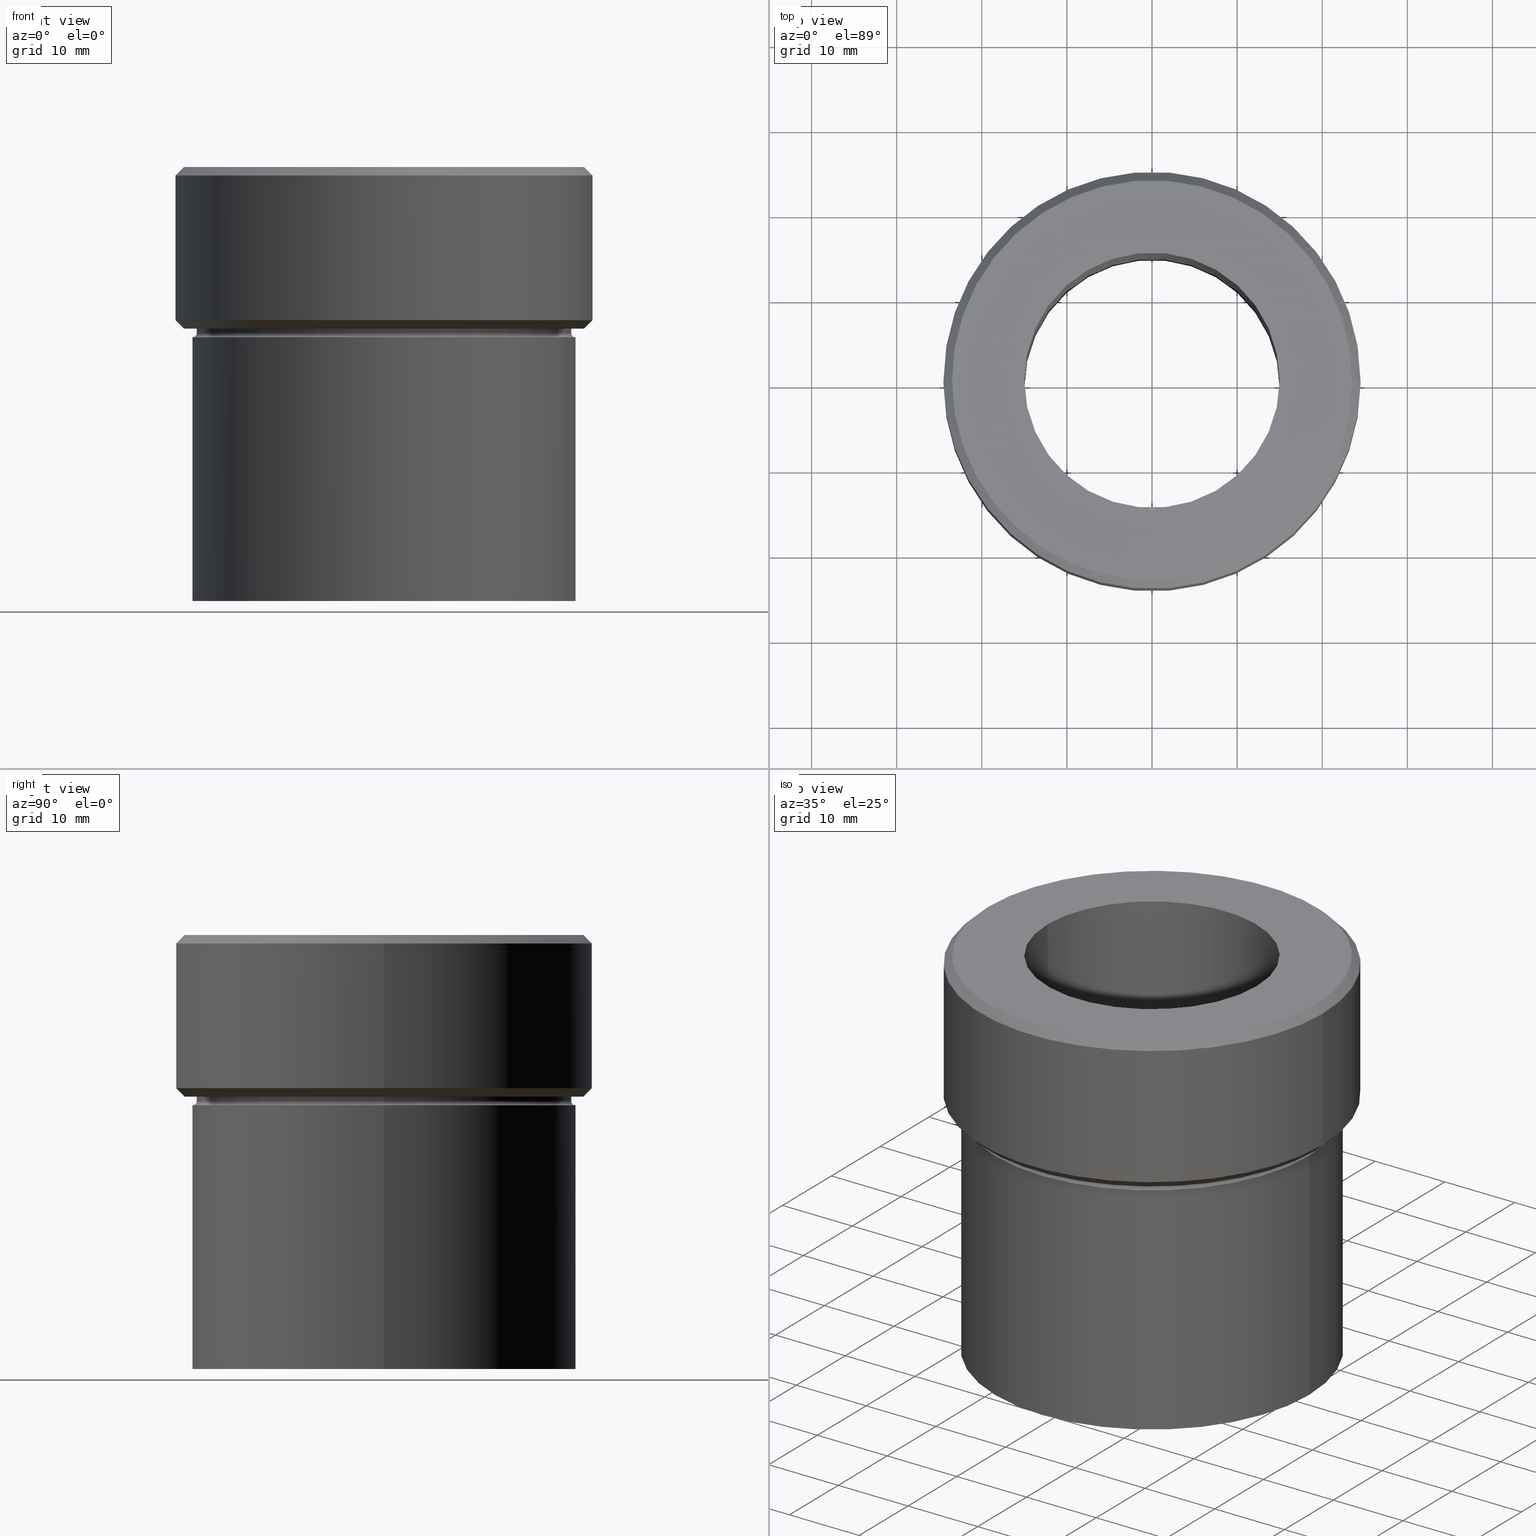
[diagram: canonical four-view strip — front | top / right | iso, engineering-drawing reading convention]
A machine part, canonical four-view strip (front | top / right | iso — engineering-drawing reading convention). The complete STEP part file that produces these views, byte-faithful:
ISO-10303-21;
HEADER;
FILE_DESCRIPTION (( 'STEP AP203' ),
    '1' );
FILE_NAME ('0ce8.STEP',
    '2024-01-08T12:24:59',
    ( '' ),
    ( '' ),
    'SwSTEP 2.0',
    'SolidWorks 2019',
    '' );
FILE_SCHEMA (( 'CONFIG_CONTROL_DESIGN' ));
ENDSEC;

DATA;
#1 = DIRECTION ( 'NONE',  ( 0.000000000000000000, -1.000000000000000000, 0.000000000000000000 ) ) ;
#2 = PERSON_AND_ORGANIZATION ( #485, #363 ) ;
#3 = DIRECTION ( 'NONE',  ( -1.000000000000000000, 0.000000000000000000, 0.000000000000000000 ) ) ;
#4 = DIRECTION ( 'NONE',  ( -0.000000000000000000, -0.000000000000000000, 1.000000000000000000 ) ) ;
#5 = AXIS2_PLACEMENT_3D ( 'NONE', #336, #82, #50 ) ;
#6 = DIRECTION ( 'NONE',  ( -0.000000000000000000, -0.000000000000000000, 1.000000000000000000 ) ) ;
#7 = DATE_TIME_ROLE ( 'classification_date' ) ;
#8 = ORIENTED_EDGE ( 'NONE', *, *, #223, .T. ) ;
#9 = DIRECTION ( 'NONE',  ( -0.000000000000000000, -0.000000000000000000, 1.000000000000000000 ) ) ;
#10 = PLANE ( 'NONE',  #423 ) ;
#11 = DIRECTION ( 'NONE',  ( -0.000000000000000000, -0.000000000000000000, 1.000000000000000000 ) ) ;
#12 = CIRCLE ( 'NONE', #86, 22.00000000000000000 ) ;
#13 = CARTESIAN_POINT ( 'NONE',  ( -22.50000000000000355, 2.755455298081545567E-15, -51.00000000000000000 ) ) ;
#14 = FACE_OUTER_BOUND ( 'NONE', #509, .T. ) ;
#15 = ORIENTED_EDGE ( 'NONE', *, *, #309, .T. ) ;
#16 = EDGE_CURVE ( 'NONE', #229, #299, #208, .T. ) ;
#17 = DIRECTION ( 'NONE',  ( 0.000000000000000000, 0.000000000000000000, -1.000000000000000000 ) ) ;
#18 = DIRECTION ( 'NONE',  ( -1.000000000000000000, 0.000000000000000000, 0.000000000000000000 ) ) ;
#19 = ORIENTED_EDGE ( 'NONE', *, *, #84, .F. ) ;
#20 = CARTESIAN_POINT ( 'NONE',  ( -15.00000000000000000, 1.836970198721029589E-15, -65.00000000000000000 ) ) ;
#21 = CARTESIAN_POINT ( 'NONE',  ( -22.50000000000000000, 2.755455298081544778E-15, -19.99999999999999645 ) ) ;
#22 = ORIENTED_EDGE ( 'NONE', *, *, #315, .T. ) ;
#23 = CONICAL_SURFACE ( 'NONE', #321, 23.50000000000000711, 0.7853981633974482790 ) ;
#24 = VECTOR ( 'NONE', #344, 1000.000000000000000 ) ;
#25 = DIRECTION ( 'NONE',  ( -0.000000000000000000, -0.000000000000000000, 1.000000000000000000 ) ) ;
#26 = ORIENTED_EDGE ( 'NONE', *, *, #170, .F. ) ;
#27 = APPROVAL_DATE_TIME ( #74, #38 ) ;
#28 = VERTEX_POINT ( 'NONE', #374 ) ;
#29 = DIRECTION ( 'NONE',  ( 1.000000000000000000, 0.000000000000000000, 0.000000000000000000 ) ) ;
#30 = APPROVAL_STATUS ( 'not_yet_approved' ) ;
#31 = ORIENTED_EDGE ( 'NONE', *, *, #290, .T. ) ;
#32 = AXIS2_PLACEMENT_3D ( 'NONE', #93, #25, #98 ) ;
#33 = DIRECTION ( 'NONE',  ( -0.000000000000000000, -0.000000000000000000, 1.000000000000000000 ) ) ;
#34 = DIRECTION ( 'NONE',  ( 0.000000000000000000, 0.000000000000000000, 1.000000000000000000 ) ) ;
#35 = ORIENTED_EDGE ( 'NONE', *, *, #151, .F. ) ;
#36 = FACE_OUTER_BOUND ( 'NONE', #498, .T. ) ;
#37 = PERSON_AND_ORGANIZATION_ROLE ( 'design_owner' ) ;
#38 = APPROVAL ( #30, 'NEUR�EN�' ) ;
#39 = FACE_OUTER_BOUND ( 'NONE', #525, .T. ) ;
#40 = AXIS2_PLACEMENT_3D ( 'NONE', #166, #241, #327 ) ;
#41 = AXIS2_PLACEMENT_3D ( 'NONE', #495, #332, #419 ) ;
#42 = MANIFOLD_SOLID_BREP ( 'Odebrat vysunut�m1', #372 ) ;
#43 = LINE ( 'NONE', #117, #388 ) ;
#44 = PRODUCT ( '0ce8', '0ce8', '', ( #111 ) ) ;
#45 = EDGE_LOOP ( 'NONE', ( #345, #173 ) ) ;
#46 = DIRECTION ( 'NONE',  ( -0.000000000000000000, -0.000000000000000000, 1.000000000000000000 ) ) ;
#47 = AXIS2_PLACEMENT_3D ( 'NONE', #164, #200, #236 ) ;
#48 = TOROIDAL_SURFACE ( 'NONE', #41, 22.50000000000000000, 0.5000000000000000000 ) ;
#49 = ORIENTED_EDGE ( 'NONE', *, *, #233, .F. ) ;
#50 = DIRECTION ( 'NONE',  ( 1.000000000000000000, 0.000000000000000000, 0.000000000000000000 ) ) ;
#51 = DIRECTION ( 'NONE',  ( 1.000000000000000000, 0.000000000000000000, 0.000000000000000000 ) ) ;
#52 = EDGE_CURVE ( 'NONE', #270, #66, #244, .T. ) ;
#53 = VERTEX_POINT ( 'NONE', #21 ) ;
#54 = CARTESIAN_POINT ( 'NONE',  ( 0.000000000000000000, 0.000000000000000000, 0.000000000000000000 ) ) ;
#55 = CARTESIAN_POINT ( 'NONE',  ( 0.000000000000000000, 0.000000000000000000, -51.00000000000000000 ) ) ;
#56 = CARTESIAN_POINT ( 'NONE',  ( 22.00000000000000000, 0.000000000000000000, -19.49999999999999645 ) ) ;
#57 = EDGE_LOOP ( 'NONE', ( #96, #392 ) ) ;
#58 = FACE_BOUND ( 'NONE', #350, .T. ) ;
#59 = ORIENTED_EDGE ( 'NONE', *, *, #223, .F. ) ;
#60 = CARTESIAN_POINT ( 'NONE',  ( -22.00000000000000000, 2.694222958124176809E-15, -18.99999999999999645 ) ) ;
#61 = ORIENTED_EDGE ( 'NONE', *, *, #129, .T. ) ;
#62 = DIRECTION ( 'NONE',  ( 1.000000000000000000, 0.000000000000000000, 0.000000000000000000 ) ) ;
#63 = EDGE_LOOP ( 'NONE', ( #384, #105, #107, #396 ) ) ;
#64 = AXIS2_PLACEMENT_3D ( 'NONE', #522, #34, #318 ) ;
#65 = LINE ( 'NONE', #178, #228 ) ;
#66 = VERTEX_POINT ( 'NONE', #502 ) ;
#67 = VERTEX_POINT ( 'NONE', #142 ) ;
#68 = VERTEX_POINT ( 'NONE', #56 ) ;
#69 = EDGE_CURVE ( 'NONE', #28, #153, #195, .T. ) ;
#70 = CYLINDRICAL_SURFACE ( 'NONE', #323, 22.50000000000000000 ) ;
#71 = CARTESIAN_POINT ( 'NONE',  ( 24.50000000000000000, 0.000000000000000000, -0.9999999999999940048 ) ) ;
#72 = EDGE_CURVE ( 'NONE', #273, #68, #466, .T. ) ;
#73 = DIRECTION ( 'NONE',  ( 1.000000000000000000, 0.000000000000000000, 0.000000000000000000 ) ) ;
#74 = DATE_AND_TIME ( #280, #474 ) ;
#75 = CARTESIAN_POINT ( 'NONE',  ( -24.50000000000000000, 3.000384657911015469E-15, -0.9999999999999940048 ) ) ;
#76 = CIRCLE ( 'NONE', #177, 15.00000000000000000 ) ;
#77 = LOCAL_TIME ( 13, 24, 59.00000000000000000, #155 ) ;
#78 = ADVANCED_FACE ( 'NONE', ( #381 ), #255, .T. ) ;
#79 = CARTESIAN_POINT ( 'NONE',  ( 0.000000000000000000, 0.000000000000000000, 0.000000000000000000 ) ) ;
#80 = PERSON_AND_ORGANIZATION_ROLE ( 'creator' ) ;
#81 = ORIENTED_EDGE ( 'NONE', *, *, #414, .F. ) ;
#82 = DIRECTION ( 'NONE',  ( -0.000000000000000000, -0.000000000000000000, 1.000000000000000000 ) ) ;
#83 = DIRECTION ( 'NONE',  ( -0.000000000000000000, -0.000000000000000000, 1.000000000000000000 ) ) ;
#84 = EDGE_CURVE ( 'NONE', #207, #67, #415, .T. ) ;
#85 = PERSON_AND_ORGANIZATION ( #485, #363 ) ;
#86 = AXIS2_PLACEMENT_3D ( 'NONE', #517, #149, #465 ) ;
#87 = CC_DESIGN_APPROVAL ( #154, ( #521 ) ) ;
#88 = CARTESIAN_POINT ( 'NONE',  ( 0.000000000000000000, 0.000000000000000000, 0.000000000000000000 ) ) ;
#89 = LINE ( 'NONE', #492, #124 ) ;
#90 = EDGE_CURVE ( 'NONE', #377, #110, #476, .T. ) ;
#91 = APPLICATION_CONTEXT ( 'configuration controlled 3d designs of mechanical parts and assemblies' ) ;
#92 = CARTESIAN_POINT ( 'NONE',  ( 15.00000000000000000, 0.000000000000000000, 0.000000000000000000 ) ) ;
#93 = CARTESIAN_POINT ( 'NONE',  ( 0.000000000000000000, 0.000000000000000000, -17.99999999999998224 ) ) ;
#94 = DIRECTION ( 'NONE',  ( -0.000000000000000000, -0.000000000000000000, 1.000000000000000000 ) ) ;
#95 = ADVANCED_FACE ( 'NONE', ( #36 ), #439, .F. ) ;
#96 = ORIENTED_EDGE ( 'NONE', *, *, #52, .T. ) ;
#97 = CARTESIAN_POINT ( 'NONE',  ( 24.50000000000000000, 0.000000000000000000, 0.000000000000000000 ) ) ;
#98 = DIRECTION ( 'NONE',  ( 1.000000000000000000, 0.000000000000000000, 0.000000000000000000 ) ) ;
#99 = ADVANCED_FACE ( 'NONE', ( #237 ), #119, .T. ) ;
#100 = VERTEX_POINT ( 'NONE', #196 ) ;
#101 = AXIS2_PLACEMENT_3D ( 'NONE', #302, #94, #513 ) ;
#102 = DIRECTION ( 'NONE',  ( 1.224646799147353207E-16, 1.000000000000000000, 0.000000000000000000 ) ) ;
#103 = ORIENTED_EDGE ( 'NONE', *, *, #431, .F. ) ;
#104 = CARTESIAN_POINT ( 'NONE',  ( 0.000000000000000000, 24.50000000000000000, -18.99999999999999645 ) ) ;
#105 = ORIENTED_EDGE ( 'NONE', *, *, #494, .T. ) ;
#106 = CYLINDRICAL_SURFACE ( 'NONE', #445, 15.00000000000000000 ) ;
#107 = ORIENTED_EDGE ( 'NONE', *, *, #531, .T. ) ;
#108 = PRODUCT_RELATED_PRODUCT_CATEGORY ( 'detail', '', ( #44 ) ) ;
#109 =( NAMED_UNIT ( * ) PLANE_ANGLE_UNIT ( ) SI_UNIT ( $, .RADIAN. ) );
#110 = VERTEX_POINT ( 'NONE', #484 ) ;
#111 = MECHANICAL_CONTEXT ( 'NONE', #219, 'mechanical' ) ;
#112 = ORIENTED_EDGE ( 'NONE', *, *, #203, .T. ) ;
#113 = EDGE_CURVE ( 'NONE', #66, #270, #373, .T. ) ;
#114 = CARTESIAN_POINT ( 'NONE',  ( 0.000000000000000000, 0.000000000000000000, -18.99999999999999645 ) ) ;
#115 = ORIENTED_EDGE ( 'NONE', *, *, #194, .T. ) ;
#116 = AXIS2_PLACEMENT_3D ( 'NONE', #446, #359, #283 ) ;
#117 = CARTESIAN_POINT ( 'NONE',  ( -23.50000000000000711, 0.000000000000000000, 0.000000000000000000 ) ) ;
#118 = CIRCLE ( 'NONE', #148, 22.00000000000000000 ) ;
#119 = CYLINDRICAL_SURFACE ( 'NONE', #516, 22.00000000000000000 ) ;
#120 = PERSON_AND_ORGANIZATION ( #485, #363 ) ;
#121 = DIRECTION ( 'NONE',  ( -0.000000000000000000, -0.000000000000000000, 1.000000000000000000 ) ) ;
#122 = CARTESIAN_POINT ( 'NONE',  ( 22.50000000000000000, 0.000000000000000000, 0.000000000000000000 ) ) ;
#123 = PERSON_AND_ORGANIZATION ( #485, #363 ) ;
#124 = VECTOR ( 'NONE', #6, 1000.000000000000000 ) ;
#125 = LOCAL_TIME ( 13, 24, 59.00000000000000000, #295 ) ;
#126 = DIRECTION ( 'NONE',  ( -0.000000000000000000, -0.000000000000000000, 1.000000000000000000 ) ) ;
#127 = AXIS2_PLACEMENT_3D ( 'NONE', #527, #279, #285 ) ;
#128 = FACE_OUTER_BOUND ( 'NONE', #438, .T. ) ;
#129 = EDGE_CURVE ( 'NONE', #132, #162, #160, .T. ) ;
#130 = DIRECTION ( 'NONE',  ( -0.000000000000000000, -0.000000000000000000, 1.000000000000000000 ) ) ;
#131 = PERSON_AND_ORGANIZATION ( #485, #363 ) ;
#132 = VERTEX_POINT ( 'NONE', #71 ) ;
#133 = CC_DESIGN_DATE_AND_TIME_ASSIGNMENT ( #371, #7, ( #169 ) ) ;
#134 = LINE ( 'NONE', #297, #235 ) ;
#135 = CALENDAR_DATE ( 2024, 8, 1 ) ;
#136 = CIRCLE ( 'NONE', #40, 23.49999999999999289 ) ;
#137 = CIRCLE ( 'NONE', #192, 22.50000000000000000 ) ;
#138 = ORIENTED_EDGE ( 'NONE', *, *, #271, .F. ) ;
#139 = CARTESIAN_POINT ( 'NONE',  ( 0.000000000000000000, 22.50000000000000355, -51.00000000000000000 ) ) ;
#140 = EDGE_CURVE ( 'NONE', #273, #443, #397, .T. ) ;
#141 = FACE_OUTER_BOUND ( 'NONE', #313, .T. ) ;
#142 = CARTESIAN_POINT ( 'NONE',  ( -23.49999999999999289, 2.939152317953647500E-15, -18.99999999999999645 ) ) ;
#143 = CARTESIAN_POINT ( 'NONE',  ( 22.00000000000000000, 0.000000000000000000, -18.99999999999999645 ) ) ;
#144 = ORIENTED_EDGE ( 'NONE', *, *, #309, .F. ) ;
#145 = CARTESIAN_POINT ( 'NONE',  ( 0.000000000000000000, 0.000000000000000000, 0.000000000000000000 ) ) ;
#146 = DIRECTION ( 'NONE',  ( -0.000000000000000000, -0.000000000000000000, 1.000000000000000000 ) ) ;
#147 = ORIENTED_EDGE ( 'NONE', *, *, #140, .T. ) ;
#148 = AXIS2_PLACEMENT_3D ( 'NONE', #412, #83, #452 ) ;
#149 = DIRECTION ( 'NONE',  ( -0.000000000000000000, -0.000000000000000000, 1.000000000000000000 ) ) ;
#150 = ORIENTED_EDGE ( 'NONE', *, *, #194, .F. ) ;
#151 = EDGE_CURVE ( 'NONE', #507, #443, #510, .T. ) ;
#152 = CARTESIAN_POINT ( 'NONE',  ( 0.000000000000000000, 0.000000000000000000, -65.00000000000000000 ) ) ;
#153 = VERTEX_POINT ( 'NONE', #486 ) ;
#154 = APPROVAL ( #243, 'NEUR�EN�' ) ;
#155 = COORDINATED_UNIVERSAL_TIME_OFFSET ( 1, 0, .AHEAD. ) ;
#156 = VECTOR ( 'NONE', #304, 1000.000000000000000 ) ;
#157 = ORIENTED_EDGE ( 'NONE', *, *, #494, .F. ) ;
#158 = EDGE_CURVE ( 'NONE', #299, #100, #481, .T. ) ;
#159 = ORIENTED_EDGE ( 'NONE', *, *, #282, .F. ) ;
#160 = CIRCLE ( 'NONE', #116, 24.50000000000000000 ) ;
#161 = FACE_OUTER_BOUND ( 'NONE', #256, .T. ) ;
#162 = VERTEX_POINT ( 'NONE', #75 ) ;
#163 = AXIS2_PLACEMENT_3D ( 'NONE', #152, #269, #390 ) ;
#164 = CARTESIAN_POINT ( 'NONE',  ( 0.000000000000000000, 0.000000000000000000, 0.000000000000000000 ) ) ;
#165 = AXIS2_PLACEMENT_3D ( 'NONE', #506, #146, #265 ) ;
#166 = CARTESIAN_POINT ( 'NONE',  ( 0.000000000000000000, 0.000000000000000000, -18.99999999999999645 ) ) ;
#167 = LINE ( 'NONE', #122, #530 ) ;
#168 = FACE_OUTER_BOUND ( 'NONE', #225, .T. ) ;
#169 = SECURITY_CLASSIFICATION ( '', '', #453 ) ;
#170 = EDGE_CURVE ( 'NONE', #377, #53, #238, .T. ) ;
#171 = CARTESIAN_POINT ( 'NONE',  ( -22.00000000000000000, 2.694222958124176809E-15, -19.49999999999999645 ) ) ;
#172 = CC_DESIGN_PERSON_AND_ORGANIZATION_ASSIGNMENT ( #402, #493, ( #521 ) ) ;
#173 = ORIENTED_EDGE ( 'NONE', *, *, #514, .F. ) ;
#174 = CARTESIAN_POINT ( 'NONE',  ( 0.000000000000000000, 0.000000000000000000, -51.00000000000000000 ) ) ;
#175 = ORIENTED_EDGE ( 'NONE', *, *, #514, .T. ) ;
#176 = DIRECTION ( 'NONE',  ( 0.000000000000000000, 0.000000000000000000, -1.000000000000000000 ) ) ;
#177 = AXIS2_PLACEMENT_3D ( 'NONE', #55, #220, #432 ) ;
#178 = CARTESIAN_POINT ( 'NONE',  ( -24.50000000000000000, 3.000384657911015469E-15, -17.99999999999998224 ) ) ;
#179 = DIRECTION ( 'NONE',  ( 1.000000000000000000, 0.000000000000000000, 0.000000000000000000 ) ) ;
#180 = DIRECTION ( 'NONE',  ( 1.000000000000000000, 0.000000000000000000, 0.000000000000000000 ) ) ;
#181 = ORIENTED_EDGE ( 'NONE', *, *, #140, .F. ) ;
#182 = DIRECTION ( 'NONE',  ( 1.000000000000000000, 0.000000000000000000, 0.000000000000000000 ) ) ;
#183 = ORIENTED_EDGE ( 'NONE', *, *, #203, .F. ) ;
#184 = DIRECTION ( 'NONE',  ( -1.000000000000000000, 0.000000000000000000, -0.000000000000000000 ) ) ;
#185 = ORIENTED_EDGE ( 'NONE', *, *, #226, .T. ) ;
#186 = AXIS2_PLACEMENT_3D ( 'NONE', #274, #216, #385 ) ;
#187 = FACE_OUTER_BOUND ( 'NONE', #57, .T. ) ;
#188 = ORIENTED_EDGE ( 'NONE', *, *, #72, .T. ) ;
#189 = ORIENTED_EDGE ( 'NONE', *, *, #72, .F. ) ;
#190 = ADVANCED_FACE ( 'NONE', ( #39 ), #23, .T. ) ;
#191 = COORDINATED_UNIVERSAL_TIME_OFFSET ( 1, 0, .AHEAD. ) ;
#192 = AXIS2_PLACEMENT_3D ( 'NONE', #202, #526, #317 ) ;
#193 = CC_DESIGN_SECURITY_CLASSIFICATION ( #169, ( #521 ) ) ;
#194 = EDGE_CURVE ( 'NONE', #68, #464, #528, .T. ) ;
#195 = CIRCLE ( 'NONE', #101, 24.50000000000000000 ) ;
#196 = CARTESIAN_POINT ( 'NONE',  ( -15.00000000000000000, 1.836970198721029589E-15, 0.000000000000000000 ) ) ;
#197 = DIRECTION ( 'NONE',  ( 1.000000000000000000, 0.000000000000000000, 0.000000000000000000 ) ) ;
#198 = VECTOR ( 'NONE', #300, 1000.000000000000114 ) ;
#199 = CARTESIAN_POINT ( 'NONE',  ( -22.00000000000000000, 2.694222958124176809E-15, 0.000000000000000000 ) ) ;
#200 = DIRECTION ( 'NONE',  ( -0.000000000000000000, -0.000000000000000000, 1.000000000000000000 ) ) ;
#201 = CALENDAR_DATE ( 2024, 8, 1 ) ;
#202 = CARTESIAN_POINT ( 'NONE',  ( 0.000000000000000000, 0.000000000000000000, -19.99999999999999645 ) ) ;
#203 = EDGE_CURVE ( 'NONE', #67, #207, #136, .T. ) ;
#204 = DIRECTION ( 'NONE',  ( 1.000000000000000000, 0.000000000000000000, 0.000000000000000000 ) ) ;
#205 = VECTOR ( 'NONE', #121, 1000.000000000000000 ) ;
#206 = COORDINATED_UNIVERSAL_TIME_OFFSET ( 1, 0, .AHEAD. ) ;
#207 = VERTEX_POINT ( 'NONE', #404 ) ;
#208 = LINE ( 'NONE', #496, #284 ) ;
#209 = FACE_OUTER_BOUND ( 'NONE', #518, .T. ) ;
#210 = APPROVAL_DATE_TIME ( #369, #376 ) ;
#211 = ORIENTED_EDGE ( 'NONE', *, *, #414, .T. ) ;
#212 = FACE_BOUND ( 'NONE', #45, .T. ) ;
#213 = ORIENTED_EDGE ( 'NONE', *, *, #357, .T. ) ;
#214 = DIRECTION ( 'NONE',  ( -1.000000000000000000, 0.000000000000000000, -0.000000000000000000 ) ) ;
#215 = CIRCLE ( 'NONE', #314, 0.5000000000000004441 ) ;
#216 = DIRECTION ( 'NONE',  ( 0.000000000000000000, 0.000000000000000000, -1.000000000000000000 ) ) ;
#217 = DIRECTION ( 'NONE',  ( -0.000000000000000000, -0.000000000000000000, 1.000000000000000000 ) ) ;
#218 = ORIENTED_EDGE ( 'NONE', *, *, #226, .F. ) ;
#219 = APPLICATION_CONTEXT ( 'configuration controlled 3d designs of mechanical parts and assemblies' ) ;
#220 = DIRECTION ( 'NONE',  ( 0.000000000000000000, 0.000000000000000000, -1.000000000000000000 ) ) ;
#221 = CARTESIAN_POINT ( 'NONE',  ( 0.000000000000000000, 0.000000000000000000, -18.99999999999999645 ) ) ;
#222 = ORIENTED_EDGE ( 'NONE', *, *, #357, .F. ) ;
#223 = EDGE_CURVE ( 'NONE', #270, #162, #43, .T. ) ;
#224 = FACE_OUTER_BOUND ( 'NONE', #353, .T. ) ;
#225 = EDGE_LOOP ( 'NONE', ( #433, #311, #31, #61 ) ) ;
#226 = EDGE_CURVE ( 'NONE', #110, #464, #167, .T. ) ;
#227 = CARTESIAN_POINT ( 'NONE',  ( 0.000000000000000000, 0.000000000000000000, 0.000000000000000000 ) ) ;
#228 = VECTOR ( 'NONE', #471, 1000.000000000000114 ) ;
#229 = VERTEX_POINT ( 'NONE', #488 ) ;
#230 = DIRECTION ( 'NONE',  ( -1.000000000000000000, 0.000000000000000000, 0.000000000000000000 ) ) ;
#231 = AXIS2_PLACEMENT_3D ( 'NONE', #395, #523, #480 ) ;
#232 = ORIENTED_EDGE ( 'NONE', *, *, #441, .F. ) ;
#233 = EDGE_CURVE ( 'NONE', #464, #53, #137, .T. ) ;
#234 =( NAMED_UNIT ( * ) SI_UNIT ( $, .STERADIAN. ) SOLID_ANGLE_UNIT ( ) );
#235 = VECTOR ( 'NONE', #262, 1000.000000000000114 ) ;
#236 = DIRECTION ( 'NONE',  ( 1.000000000000000000, 0.000000000000000000, 0.000000000000000000 ) ) ;
#237 = FACE_OUTER_BOUND ( 'NONE', #515, .T. ) ;
#238 = LINE ( 'NONE', #398, #252 ) ;
#239 = CC_DESIGN_DATE_AND_TIME_ASSIGNMENT ( #316, #442, ( #338 ) ) ;
#240 = AXIS2_PLACEMENT_3D ( 'NONE', #422, #462, #330 ) ;
#241 = DIRECTION ( 'NONE',  ( 0.000000000000000000, 0.000000000000000000, -1.000000000000000000 ) ) ;
#242 = LOCAL_TIME ( 13, 24, 59.00000000000000000, #206 ) ;
#243 = APPROVAL_STATUS ( 'not_yet_approved' ) ;
#244 = CIRCLE ( 'NONE', #427, 23.50000000000000711 ) ;
#245 = ADVANCED_FACE ( 'NONE', ( #161 ), #70, .T. ) ;
#246 = DIRECTION ( 'NONE',  ( -0.000000000000000000, -0.000000000000000000, 1.000000000000000000 ) ) ;
#247 = ORIENTED_EDGE ( 'NONE', *, *, #90, .F. ) ;
#248 = EDGE_CURVE ( 'NONE', #53, #464, #307, .T. ) ;
#249 = DATE_AND_TIME ( #135, #242 ) ;
#250 = ORIENTED_EDGE ( 'NONE', *, *, #267, .F. ) ;
#251 = DIRECTION ( 'NONE',  ( -0.000000000000000000, -0.000000000000000000, 1.000000000000000000 ) ) ;
#252 = VECTOR ( 'NONE', #246, 1000.000000000000000 ) ;
#253 = APPROVAL_STATUS ( 'not_yet_approved' ) ;
#254 = AXIS2_PLACEMENT_3D ( 'NONE', #54, #9, #459 ) ;
#255 = CONICAL_SURFACE ( 'NONE', #165, 24.50000000000000000, 0.7853981633974447263 ) ;
#256 = EDGE_LOOP ( 'NONE', ( #213, #382, #49, #218 ) ) ;
#257 = FACE_OUTER_BOUND ( 'NONE', #469, .T. ) ;
#258 = DIRECTION ( 'NONE',  ( 0.000000000000000000, 0.000000000000000000, -1.000000000000000000 ) ) ;
#259 = DIRECTION ( 'NONE',  ( 1.000000000000000000, 0.000000000000000000, 0.000000000000000000 ) ) ;
#260 = CC_DESIGN_PERSON_AND_ORGANIZATION_ASSIGNMENT ( #278, #354, ( #338 ) ) ;
#261 = EDGE_LOOP ( 'NONE', ( #418, #391 ) ) ;
#262 = DIRECTION ( 'NONE',  ( 0.7071067811865474617, 8.659560562354932858E-17, -0.7071067811865474617 ) ) ;
#263 = CONICAL_SURFACE ( 'NONE', #186, 23.50000000000000711, 0.7853981633974482790 ) ;
#264 = CARTESIAN_POINT ( 'NONE',  ( 0.000000000000000000, 0.000000000000000000, -51.00000000000000000 ) ) ;
#265 = DIRECTION ( 'NONE',  ( 1.000000000000000000, 0.000000000000000000, 0.000000000000000000 ) ) ;
#266 = ORIENTED_EDGE ( 'NONE', *, *, #52, .F. ) ;
#267 = EDGE_CURVE ( 'NONE', #153, #28, #499, .T. ) ;
#268 = UNCERTAINTY_MEASURE_WITH_UNIT (LENGTH_MEASURE( 1.000000000000000082E-05 ), #360, 'distance_accuracy_value', 'NONE');
#269 = DIRECTION ( 'NONE',  ( -0.000000000000000000, -0.000000000000000000, 1.000000000000000000 ) ) ;
#270 = VERTEX_POINT ( 'NONE', #456 ) ;
#271 = EDGE_CURVE ( 'NONE', #68, #507, #89, .T. ) ;
#272 = CARTESIAN_POINT ( 'NONE',  ( 0.000000000000000000, 0.000000000000000000, 0.000000000000000000 ) ) ;
#273 = VERTEX_POINT ( 'NONE', #171 ) ;
#274 = CARTESIAN_POINT ( 'NONE',  ( 0.000000000000000000, 0.000000000000000000, 0.000000000000000000 ) ) ;
#275 = VECTOR ( 'NONE', #4, 1000.000000000000000 ) ;
#276 = ORIENTED_EDGE ( 'NONE', *, *, #129, .F. ) ;
#277 = EDGE_LOOP ( 'NONE', ( #222, #247 ) ) ;
#278 = PERSON_AND_ORGANIZATION ( #485, #363 ) ;
#279 = DIRECTION ( 'NONE',  ( -0.000000000000000000, -0.000000000000000000, 1.000000000000000000 ) ) ;
#280 = CALENDAR_DATE ( 2024, 8, 1 ) ;
#281 = CIRCLE ( 'NONE', #298, 15.00000000000000000 ) ;
#282 = EDGE_CURVE ( 'NONE', #207, #153, #497, .T. ) ;
#283 = DIRECTION ( 'NONE',  ( 1.000000000000000000, 0.000000000000000000, 0.000000000000000000 ) ) ;
#284 = VECTOR ( 'NONE', #126, 1000.000000000000000 ) ;
#285 = DIRECTION ( 'NONE',  ( 1.000000000000000000, 0.000000000000000000, 0.000000000000000000 ) ) ;
#286 = ADVANCED_BREP_SHAPE_REPRESENTATION ( '0ce8', ( #42, #64 ), #511 ) ;
#287 = DIRECTION ( 'NONE',  ( 0.000000000000000000, 0.000000000000000000, -1.000000000000000000 ) ) ;
#288 = AXIS2_PLACEMENT_3D ( 'NONE', #174, #417, #51 ) ;
#289 = CARTESIAN_POINT ( 'NONE',  ( 0.000000000000000000, 0.000000000000000000, 0.000000000000000000 ) ) ;
#290 = EDGE_CURVE ( 'NONE', #153, #132, #503, .T. ) ;
#291 = CYLINDRICAL_SURFACE ( 'NONE', #5, 24.50000000000000000 ) ;
#292 = APPROVAL_DATE_TIME ( #249, #154 ) ;
#293 = ORIENTED_EDGE ( 'NONE', *, *, #504, .F. ) ;
#294 = CARTESIAN_POINT ( 'NONE',  ( 0.000000000000000000, 0.000000000000000000, -17.99999999999998224 ) ) ;
#295 = COORDINATED_UNIVERSAL_TIME_OFFSET ( 1, 0, .AHEAD. ) ;
#296 = ORIENTED_EDGE ( 'NONE', *, *, #248, .T. ) ;
#297 = CARTESIAN_POINT ( 'NONE',  ( 23.50000000000000711, 2.877919977996281109E-15, 0.000000000000000000 ) ) ;
#298 = AXIS2_PLACEMENT_3D ( 'NONE', #272, #512, #62 ) ;
#299 = VERTEX_POINT ( 'NONE', #92 ) ;
#300 = DIRECTION ( 'NONE',  ( 0.7071067811865451302, 0.000000000000000000, 0.7071067811865500152 ) ) ;
#301 = CARTESIAN_POINT ( 'NONE',  ( -22.50000000000000000, 2.755455298081544778E-15, -19.49999999999999645 ) ) ;
#302 = CARTESIAN_POINT ( 'NONE',  ( 0.000000000000000000, 0.000000000000000000, -17.99999999999998224 ) ) ;
#303 = VERTEX_POINT ( 'NONE', #339 ) ;
#304 = DIRECTION ( 'NONE',  ( -0.000000000000000000, -0.000000000000000000, 1.000000000000000000 ) ) ;
#305 = ADVANCED_FACE ( 'NONE', ( #257 ), #48, .F. ) ;
#306 = EDGE_LOOP ( 'NONE', ( #405, #112 ) ) ;
#307 = CIRCLE ( 'NONE', #240, 22.50000000000000000 ) ;
#308 = CYLINDRICAL_SURFACE ( 'NONE', #163, 15.00000000000000000 ) ;
#309 = EDGE_CURVE ( 'NONE', #68, #273, #118, .T. ) ;
#310 = CARTESIAN_POINT ( 'NONE',  ( 0.000000000000000000, 0.000000000000000000, -0.9999999999999940048 ) ) ;
#311 = ORIENTED_EDGE ( 'NONE', *, *, #69, .T. ) ;
#312 = DIRECTION ( 'NONE',  ( 1.000000000000000000, 0.000000000000000000, 0.000000000000000000 ) ) ;
#313 = EDGE_LOOP ( 'NONE', ( #519, #266, #8, #276 ) ) ;
#314 = AXIS2_PLACEMENT_3D ( 'NONE', #301, #102, #346 ) ;
#315 = EDGE_CURVE ( 'NONE', #66, #132, #134, .T. ) ;
#316 = DATE_AND_TIME ( #356, #77 ) ;
#317 = DIRECTION ( 'NONE',  ( 1.000000000000000000, 0.000000000000000000, 0.000000000000000000 ) ) ;
#318 = DIRECTION ( 'NONE',  ( 1.000000000000000000, 0.000000000000000000, 0.000000000000000000 ) ) ;
#319 = ORIENTED_EDGE ( 'NONE', *, *, #90, .T. ) ;
#320 = CARTESIAN_POINT ( 'NONE',  ( 0.000000000000000000, 0.000000000000000000, 0.000000000000000000 ) ) ;
#321 = AXIS2_PLACEMENT_3D ( 'NONE', #365, #368, #3 ) ;
#322 = ADVANCED_FACE ( 'NONE', ( #128 ), #406, .T. ) ;
#323 = AXIS2_PLACEMENT_3D ( 'NONE', #320, #130, #204 ) ;
#324 = DIRECTION ( 'NONE',  ( 1.000000000000000000, 0.000000000000000000, 0.000000000000000000 ) ) ;
#325 = AXIS2_PLACEMENT_3D ( 'NONE', #79, #479, #197 ) ;
#326 = SHAPE_DEFINITION_REPRESENTATION ( #335, #286 ) ;
#327 = DIRECTION ( 'NONE',  ( -1.000000000000000000, 0.000000000000000000, 0.000000000000000000 ) ) ;
#328 = ADVANCED_FACE ( 'NONE', ( #168 ), #291, .T. ) ;
#329 = CIRCLE ( 'NONE', #473, 15.00000000000000000 ) ;
#330 = DIRECTION ( 'NONE',  ( 1.000000000000000000, 0.000000000000000000, 0.000000000000000000 ) ) ;
#331 = APPROVAL_ROLE ( '' ) ;
#332 = DIRECTION ( 'NONE',  ( -0.000000000000000000, -0.000000000000000000, 1.000000000000000000 ) ) ;
#333 = APPROVAL_ROLE ( '' ) ;
#334 = ADVANCED_FACE ( 'NONE', ( #209 ), #379, .T. ) ;
#335 = PRODUCT_DEFINITION_SHAPE ( 'NONE', 'NONE',  #338 ) ;
#336 = CARTESIAN_POINT ( 'NONE',  ( 0.000000000000000000, 0.000000000000000000, 0.000000000000000000 ) ) ;
#337 = ORIENTED_EDGE ( 'NONE', *, *, #158, .T. ) ;
#338 = PRODUCT_DEFINITION ( 'NEZN�M�', '', #521, #447 ) ;
#339 = CARTESIAN_POINT ( 'NONE',  ( -15.00000000000000000, 1.836970198721029589E-15, -51.00000000000000000 ) ) ;
#340 = AXIS2_PLACEMENT_3D ( 'NONE', #310, #508, #180 ) ;
#341 = APPROVAL_PERSON_ORGANIZATION ( #2, #376, #333 ) ;
#342 = CYLINDRICAL_SURFACE ( 'NONE', #450, 22.50000000000000000 ) ;
#343 = LINE ( 'NONE', #380, #156 ) ;
#344 = DIRECTION ( 'NONE',  ( -0.000000000000000000, -0.000000000000000000, 1.000000000000000000 ) ) ;
#345 = ORIENTED_EDGE ( 'NONE', *, *, #475, .F. ) ;
#346 = DIRECTION ( 'NONE',  ( -1.000000000000000000, 1.224646799147349509E-16, 0.000000000000000000 ) ) ;
#347 = ORIENTED_EDGE ( 'NONE', *, *, #271, .T. ) ;
#348 = CIRCLE ( 'NONE', #288, 22.50000000000000355 ) ;
#349 = DIRECTION ( 'NONE',  ( -0.000000000000000000, -0.000000000000000000, 1.000000000000000000 ) ) ;
#350 = EDGE_LOOP ( 'NONE', ( #440, #211 ) ) ;
#351 = AXIS2_PLACEMENT_3D ( 'NONE', #477, #217, #259 ) ;
#352 = FACE_OUTER_BOUND ( 'NONE', #63, .T. ) ;
#353 = EDGE_LOOP ( 'NONE', ( #183, #386, #250, #159 ) ) ;
#354 = PERSON_AND_ORGANIZATION_ROLE ( 'creator' ) ;
#355 = ORIENTED_EDGE ( 'NONE', *, *, #248, .F. ) ;
#356 = CALENDAR_DATE ( 2024, 8, 1 ) ;
#357 = EDGE_CURVE ( 'NONE', #110, #377, #348, .T. ) ;
#358 = APPLICATION_PROTOCOL_DEFINITION ( 'international standard', 'config_control_design', 1994, #219 ) ;
#359 = DIRECTION ( 'NONE',  ( 0.000000000000000000, 0.000000000000000000, -1.000000000000000000 ) ) ;
#360 =( LENGTH_UNIT ( ) NAMED_UNIT ( * ) SI_UNIT ( .MILLI., .METRE. ) );
#361 = EDGE_LOOP ( 'NONE', ( #293, #19, #457, #430 ) ) ;
#362 = DIRECTION ( 'NONE',  ( -0.000000000000000000, -0.000000000000000000, 1.000000000000000000 ) ) ;
#363 = ORGANIZATION ( 'NEUR�EN�', 'NEUR�EN�', '' ) ;
#364 = CC_DESIGN_APPROVAL ( #376, ( #169 ) ) ;
#365 = CARTESIAN_POINT ( 'NONE',  ( 0.000000000000000000, 0.000000000000000000, 0.000000000000000000 ) ) ;
#366 = CALENDAR_DATE ( 2024, 8, 1 ) ;
#367 = ADVANCED_FACE ( 'NONE', ( #212, #378 ), #10, .T. ) ;
#368 = DIRECTION ( 'NONE',  ( 0.000000000000000000, 0.000000000000000000, -1.000000000000000000 ) ) ;
#369 = DATE_AND_TIME ( #201, #125 ) ;
#370 = CARTESIAN_POINT ( 'NONE',  ( 24.50000000000000000, 0.000000000000000000, -17.99999999999998224 ) ) ;
#371 = DATE_AND_TIME ( #366, #413 ) ;
#372 = CLOSED_SHELL ( 'NONE', ( #403, #95, #190, #489, #245, #334, #322, #455, #328, #520, #99, #407, #367, #78, #451, #305, #436 ) ) ;
#373 = CIRCLE ( 'NONE', #325, 23.50000000000000711 ) ;
#374 = CARTESIAN_POINT ( 'NONE',  ( -24.50000000000000000, 3.000384657911015469E-15, -17.99999999999998224 ) ) ;
#375 = CARTESIAN_POINT ( 'NONE',  ( 0.000000000000000000, 0.000000000000000000, 0.000000000000000000 ) ) ;
#376 = APPROVAL ( #253, 'NEUR�EN�' ) ;
#377 = VERTEX_POINT ( 'NONE', #13 ) ;
#378 = FACE_OUTER_BOUND ( 'NONE', #277, .T. ) ;
#379 = CYLINDRICAL_SURFACE ( 'NONE', #254, 22.00000000000000000 ) ;
#380 = CARTESIAN_POINT ( 'NONE',  ( -24.50000000000000000, 3.000384657911015469E-15, 0.000000000000000000 ) ) ;
#381 = FACE_OUTER_BOUND ( 'NONE', #361, .T. ) ;
#382 = ORIENTED_EDGE ( 'NONE', *, *, #170, .T. ) ;
#383 = PLANE ( 'NONE',  #389 ) ;
#384 = ORIENTED_EDGE ( 'NONE', *, *, #475, .T. ) ;
#385 = DIRECTION ( 'NONE',  ( -1.000000000000000000, 0.000000000000000000, 0.000000000000000000 ) ) ;
#386 = ORIENTED_EDGE ( 'NONE', *, *, #504, .T. ) ;
#387 = AXIS2_PLACEMENT_3D ( 'NONE', #444, #1, #287 ) ;
#388 = VECTOR ( 'NONE', #401, 1000.000000000000114 ) ;
#389 = AXIS2_PLACEMENT_3D ( 'NONE', #104, #17, #184 ) ;
#390 = DIRECTION ( 'NONE',  ( 1.000000000000000000, 0.000000000000000000, 0.000000000000000000 ) ) ;
#391 = ORIENTED_EDGE ( 'NONE', *, *, #531, .F. ) ;
#392 = ORIENTED_EDGE ( 'NONE', *, *, #113, .T. ) ;
#393 = DIRECTION ( 'NONE',  ( -0.000000000000000000, -0.000000000000000000, 1.000000000000000000 ) ) ;
#394 = EDGE_CURVE ( 'NONE', #28, #162, #343, .T. ) ;
#395 = CARTESIAN_POINT ( 'NONE',  ( 0.000000000000000000, 0.000000000000000000, -19.49999999999999645 ) ) ;
#396 = ORIENTED_EDGE ( 'NONE', *, *, #16, .F. ) ;
#397 = LINE ( 'NONE', #199, #205 ) ;
#398 = CARTESIAN_POINT ( 'NONE',  ( -22.50000000000000000, 2.755455298081544778E-15, 0.000000000000000000 ) ) ;
#399 = COORDINATED_UNIVERSAL_TIME_OFFSET ( 1, 0, .AHEAD. ) ;
#400 = AXIS2_PLACEMENT_3D ( 'NONE', #294, #46, #500 ) ;
#401 = DIRECTION ( 'NONE',  ( -0.7071067811865474617, 0.000000000000000000, -0.7071067811865474617 ) ) ;
#402 = PERSON_AND_ORGANIZATION ( #485, #363 ) ;
#403 = ADVANCED_FACE ( 'NONE', ( #352 ), #308, .F. ) ;
#404 = CARTESIAN_POINT ( 'NONE',  ( 23.49999999999999289, 0.000000000000000000, -18.99999999999999645 ) ) ;
#405 = ORIENTED_EDGE ( 'NONE', *, *, #84, .T. ) ;
#406 = CYLINDRICAL_SURFACE ( 'NONE', #490, 24.50000000000000000 ) ;
#407 = ADVANCED_FACE ( 'NONE', ( #14 ), #342, .T. ) ;
#408 = PERSON_AND_ORGANIZATION_ROLE ( 'classification_officer' ) ;
#409 = ORIENTED_EDGE ( 'NONE', *, *, #267, .T. ) ;
#410 = CIRCLE ( 'NONE', #340, 24.50000000000000000 ) ;
#411 = ORIENTED_EDGE ( 'NONE', *, *, #113, .F. ) ;
#412 = CARTESIAN_POINT ( 'NONE',  ( 0.000000000000000000, 0.000000000000000000, -19.49999999999999645 ) ) ;
#413 = LOCAL_TIME ( 13, 24, 59.00000000000000000, #399 ) ;
#414 = EDGE_CURVE ( 'NONE', #443, #507, #12, .T. ) ;
#415 = CIRCLE ( 'NONE', #460, 23.49999999999999289 ) ;
#416 = ORIENTED_EDGE ( 'NONE', *, *, #290, .F. ) ;
#417 = DIRECTION ( 'NONE',  ( -0.000000000000000000, -0.000000000000000000, 1.000000000000000000 ) ) ;
#418 = ORIENTED_EDGE ( 'NONE', *, *, #158, .F. ) ;
#419 = DIRECTION ( 'NONE',  ( 1.000000000000000000, 0.000000000000000000, 0.000000000000000000 ) ) ;
#420 = CARTESIAN_POINT ( 'NONE',  ( 0.000000000000000000, 0.000000000000000000, -65.00000000000000000 ) ) ;
#421 = ORIENTED_EDGE ( 'NONE', *, *, #394, .T. ) ;
#422 = CARTESIAN_POINT ( 'NONE',  ( 0.000000000000000000, 0.000000000000000000, -19.99999999999999645 ) ) ;
#423 = AXIS2_PLACEMENT_3D ( 'NONE', #139, #176, #214 ) ;
#424 = CC_DESIGN_APPROVAL ( #38, ( #338 ) ) ;
#425 = FACE_OUTER_BOUND ( 'NONE', #306, .T. ) ;
#426 = DIRECTION ( 'NONE',  ( 0.000000000000000000, 0.000000000000000000, -1.000000000000000000 ) ) ;
#427 = AXIS2_PLACEMENT_3D ( 'NONE', #88, #393, #29 ) ;
#428 = ORIENTED_EDGE ( 'NONE', *, *, #441, .T. ) ;
#429 = DIRECTION ( 'NONE',  ( 0.000000000000000000, -0.000000000000000000, 1.000000000000000000 ) ) ;
#430 = ORIENTED_EDGE ( 'NONE', *, *, #69, .F. ) ;
#431 = EDGE_CURVE ( 'NONE', #273, #53, #215, .T. ) ;
#432 = DIRECTION ( 'NONE',  ( -1.000000000000000000, 0.000000000000000000, 0.000000000000000000 ) ) ;
#433 = ORIENTED_EDGE ( 'NONE', *, *, #394, .F. ) ;
#434 = AXIS2_PLACEMENT_3D ( 'NONE', #114, #362, #73 ) ;
#435 = APPROVAL_PERSON_ORGANIZATION ( #448, #38, #524 ) ;
#436 = ADVANCED_FACE ( 'NONE', ( #501 ), #106, .F. ) ;
#437 = LINE ( 'NONE', #20, #24 ) ;
#438 = EDGE_LOOP ( 'NONE', ( #409, #421, #428, #416 ) ) ;
#439 = TOROIDAL_SURFACE ( 'NONE', #231, 22.50000000000000000, 0.5000000000000000000 ) ;
#440 = ORIENTED_EDGE ( 'NONE', *, *, #151, .T. ) ;
#441 = EDGE_CURVE ( 'NONE', #162, #132, #410, .T. ) ;
#442 = DATE_TIME_ROLE ( 'creation_date' ) ;
#443 = VERTEX_POINT ( 'NONE', #60 ) ;
#444 = CARTESIAN_POINT ( 'NONE',  ( 22.50000000000000000, 0.000000000000000000, -19.49999999999999645 ) ) ;
#445 = AXIS2_PLACEMENT_3D ( 'NONE', #420, #11, #505 ) ;
#446 = CARTESIAN_POINT ( 'NONE',  ( 0.000000000000000000, 0.000000000000000000, -0.9999999999999940048 ) ) ;
#447 = DESIGN_CONTEXT ( 'detailed design', #91, 'design' ) ;
#448 = PERSON_AND_ORGANIZATION ( #485, #363 ) ;
#449 = DIRECTION ( 'NONE',  ( -0.000000000000000000, -0.000000000000000000, 1.000000000000000000 ) ) ;
#450 = AXIS2_PLACEMENT_3D ( 'NONE', #227, #349, #312 ) ;
#451 = ADVANCED_FACE ( 'NONE', ( #141 ), #263, .T. ) ;
#452 = DIRECTION ( 'NONE',  ( 1.000000000000000000, 0.000000000000000000, 0.000000000000000000 ) ) ;
#453 = SECURITY_CLASSIFICATION_LEVEL ( 'unclassified' ) ;
#454 = ORIENTED_EDGE ( 'NONE', *, *, #431, .T. ) ;
#455 = ADVANCED_FACE ( 'NONE', ( #461, #187 ), #463, .T. ) ;
#456 = CARTESIAN_POINT ( 'NONE',  ( -23.50000000000000711, 0.000000000000000000, 0.000000000000000000 ) ) ;
#457 = ORIENTED_EDGE ( 'NONE', *, *, #282, .T. ) ;
#458 = AXIS2_PLACEMENT_3D ( 'NONE', #145, #429, #182 ) ;
#459 = DIRECTION ( 'NONE',  ( 1.000000000000000000, 0.000000000000000000, 0.000000000000000000 ) ) ;
#460 = AXIS2_PLACEMENT_3D ( 'NONE', #221, #426, #18 ) ;
#461 = FACE_BOUND ( 'NONE', #261, .T. ) ;
#462 = DIRECTION ( 'NONE',  ( -0.000000000000000000, -0.000000000000000000, 1.000000000000000000 ) ) ;
#463 = PLANE ( 'NONE',  #458 ) ;
#464 = VERTEX_POINT ( 'NONE', #468 ) ;
#465 = DIRECTION ( 'NONE',  ( 1.000000000000000000, 0.000000000000000000, 0.000000000000000000 ) ) ;
#466 = CIRCLE ( 'NONE', #351, 22.00000000000000000 ) ;
#467 = ORIENTED_EDGE ( 'NONE', *, *, #16, .T. ) ;
#468 = CARTESIAN_POINT ( 'NONE',  ( 22.50000000000000000, 0.000000000000000000, -19.99999999999999645 ) ) ;
#469 = EDGE_LOOP ( 'NONE', ( #103, #144, #115, #472 ) ) ;
#470 = CC_DESIGN_PERSON_AND_ORGANIZATION_ASSIGNMENT ( #120, #37, ( #44 ) ) ;
#471 = DIRECTION ( 'NONE',  ( -0.7071067811865451302, 8.659560562354904508E-17, 0.7071067811865500152 ) ) ;
#472 = ORIENTED_EDGE ( 'NONE', *, *, #233, .T. ) ;
#473 = AXIS2_PLACEMENT_3D ( 'NONE', #264, #258, #230 ) ;
#474 = LOCAL_TIME ( 13, 24, 59.00000000000000000, #191 ) ;
#475 = EDGE_CURVE ( 'NONE', #229, #303, #76, .T. ) ;
#476 = CIRCLE ( 'NONE', #127, 22.50000000000000355 ) ;
#477 = CARTESIAN_POINT ( 'NONE',  ( 0.000000000000000000, 0.000000000000000000, -19.49999999999999645 ) ) ;
#478 = CC_DESIGN_PERSON_AND_ORGANIZATION_ASSIGNMENT ( #131, #408, ( #169 ) ) ;
#479 = DIRECTION ( 'NONE',  ( -0.000000000000000000, -0.000000000000000000, 1.000000000000000000 ) ) ;
#480 = DIRECTION ( 'NONE',  ( 1.000000000000000000, 0.000000000000000000, 0.000000000000000000 ) ) ;
#481 = CIRCLE ( 'NONE', #47, 15.00000000000000000 ) ;
#482 = CONICAL_SURFACE ( 'NONE', #32, 24.50000000000000000, 0.7853981633974447263 ) ;
#483 = APPROVAL_PERSON_ORGANIZATION ( #85, #154, #331 ) ;
#484 = CARTESIAN_POINT ( 'NONE',  ( 22.50000000000000355, 0.000000000000000000, -51.00000000000000000 ) ) ;
#485 = PERSON ( 'NEUR�EN�', 'NEUR�EN�', 'NEUR�EN�', ('NEUR�EN�'), ('NEUR�EN�'), ('NEUR�EN�') ) ;
#486 = CARTESIAN_POINT ( 'NONE',  ( 24.50000000000000000, 0.000000000000000000, -17.99999999999998224 ) ) ;
#487 = CC_DESIGN_PERSON_AND_ORGANIZATION_ASSIGNMENT ( #123, #80, ( #521 ) ) ;
#488 = CARTESIAN_POINT ( 'NONE',  ( 15.00000000000000000, 0.000000000000000000, -51.00000000000000000 ) ) ;
#489 = ADVANCED_FACE ( 'NONE', ( #224 ), #482, .T. ) ;
#490 = AXIS2_PLACEMENT_3D ( 'NONE', #375, #251, #179 ) ;
#491 = EDGE_LOOP ( 'NONE', ( #157, #175, #467, #337 ) ) ;
#492 = CARTESIAN_POINT ( 'NONE',  ( 22.00000000000000000, 0.000000000000000000, 0.000000000000000000 ) ) ;
#493 = PERSON_AND_ORGANIZATION_ROLE ( 'design_supplier' ) ;
#494 = EDGE_CURVE ( 'NONE', #303, #100, #437, .T. ) ;
#495 = CARTESIAN_POINT ( 'NONE',  ( 0.000000000000000000, 0.000000000000000000, -19.49999999999999645 ) ) ;
#496 = CARTESIAN_POINT ( 'NONE',  ( 15.00000000000000000, 0.000000000000000000, -65.00000000000000000 ) ) ;
#497 = LINE ( 'NONE', #370, #198 ) ;
#498 = EDGE_LOOP ( 'NONE', ( #189, #454, #296, #150 ) ) ;
#499 = CIRCLE ( 'NONE', #400, 24.50000000000000000 ) ;
#500 = DIRECTION ( 'NONE',  ( -1.000000000000000000, 0.000000000000000000, 0.000000000000000000 ) ) ;
#501 = FACE_OUTER_BOUND ( 'NONE', #491, .T. ) ;
#502 = CARTESIAN_POINT ( 'NONE',  ( 23.50000000000000711, 2.939152317953648289E-15, 0.000000000000000000 ) ) ;
#503 = LINE ( 'NONE', #97, #275 ) ;
#504 = EDGE_CURVE ( 'NONE', #67, #28, #65, .T. ) ;
#505 = DIRECTION ( 'NONE',  ( 1.000000000000000000, 0.000000000000000000, 0.000000000000000000 ) ) ;
#506 = CARTESIAN_POINT ( 'NONE',  ( 0.000000000000000000, 0.000000000000000000, -17.99999999999998224 ) ) ;
#507 = VERTEX_POINT ( 'NONE', #143 ) ;
#508 = DIRECTION ( 'NONE',  ( 0.000000000000000000, 0.000000000000000000, -1.000000000000000000 ) ) ;
#509 = EDGE_LOOP ( 'NONE', ( #26, #319, #185, #355 ) ) ;
#510 = CIRCLE ( 'NONE', #434, 22.00000000000000000 ) ;
#511 =( GEOMETRIC_REPRESENTATION_CONTEXT ( 3 ) GLOBAL_UNCERTAINTY_ASSIGNED_CONTEXT ( ( #268 ) ) GLOBAL_UNIT_ASSIGNED_CONTEXT ( ( #360, #109, #234 ) ) REPRESENTATION_CONTEXT ( 'NONE', 'WORKASPACE' ) );
#512 = DIRECTION ( 'NONE',  ( -0.000000000000000000, -0.000000000000000000, 1.000000000000000000 ) ) ;
#513 = DIRECTION ( 'NONE',  ( -1.000000000000000000, 0.000000000000000000, 0.000000000000000000 ) ) ;
#514 = EDGE_CURVE ( 'NONE', #303, #229, #329, .T. ) ;
#515 = EDGE_LOOP ( 'NONE', ( #181, #188, #347, #81 ) ) ;
#516 = AXIS2_PLACEMENT_3D ( 'NONE', #289, #449, #324 ) ;
#517 = CARTESIAN_POINT ( 'NONE',  ( 0.000000000000000000, 0.000000000000000000, -18.99999999999999645 ) ) ;
#518 = EDGE_LOOP ( 'NONE', ( #15, #147, #35, #138 ) ) ;
#519 = ORIENTED_EDGE ( 'NONE', *, *, #315, .F. ) ;
#520 = ADVANCED_FACE ( 'NONE', ( #425, #58 ), #383, .T. ) ;
#521 = PRODUCT_DEFINITION_FORMATION_WITH_SPECIFIED_SOURCE ( 'LIBOVOLN�', '', #44, .NOT_KNOWN. ) ;
#522 = CARTESIAN_POINT ( 'NONE',  ( 0.000000000000000000, 0.000000000000000000, 0.000000000000000000 ) ) ;
#523 = DIRECTION ( 'NONE',  ( -0.000000000000000000, -0.000000000000000000, 1.000000000000000000 ) ) ;
#524 = APPROVAL_ROLE ( '' ) ;
#525 = EDGE_LOOP ( 'NONE', ( #411, #22, #232, #59 ) ) ;
#526 = DIRECTION ( 'NONE',  ( -0.000000000000000000, -0.000000000000000000, 1.000000000000000000 ) ) ;
#527 = CARTESIAN_POINT ( 'NONE',  ( 0.000000000000000000, 0.000000000000000000, -51.00000000000000000 ) ) ;
#528 = CIRCLE ( 'NONE', #387, 0.5000000000000004441 ) ;
#529 = APPLICATION_PROTOCOL_DEFINITION ( 'international standard', 'config_control_design', 1994, #91 ) ;
#530 = VECTOR ( 'NONE', #33, 1000.000000000000000 ) ;
#531 = EDGE_CURVE ( 'NONE', #100, #299, #281, .T. ) ;
ENDSEC;
END-ISO-10303-21;
